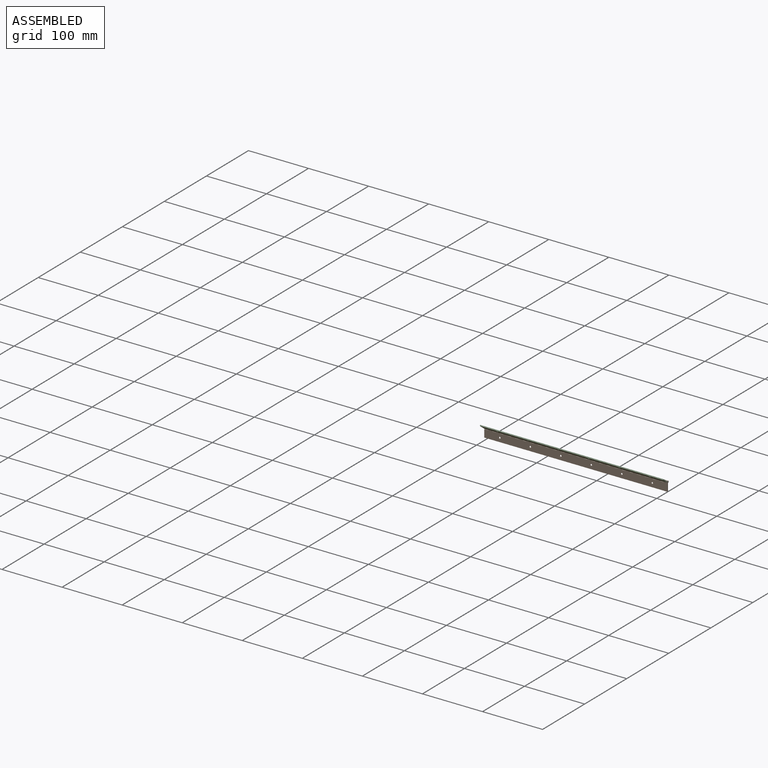
[diagram: assembled view]
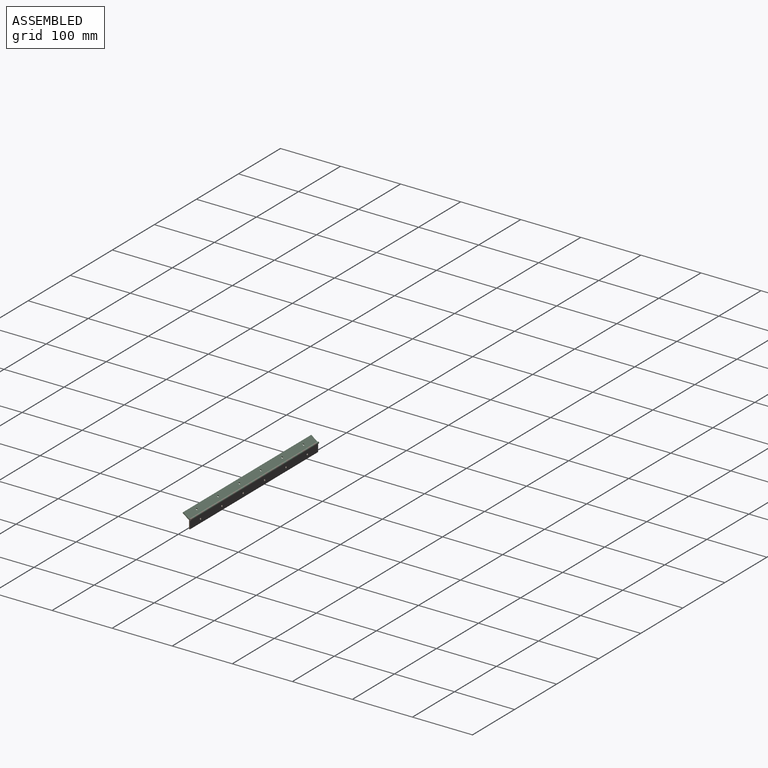
[diagram: assembled view, second angle]
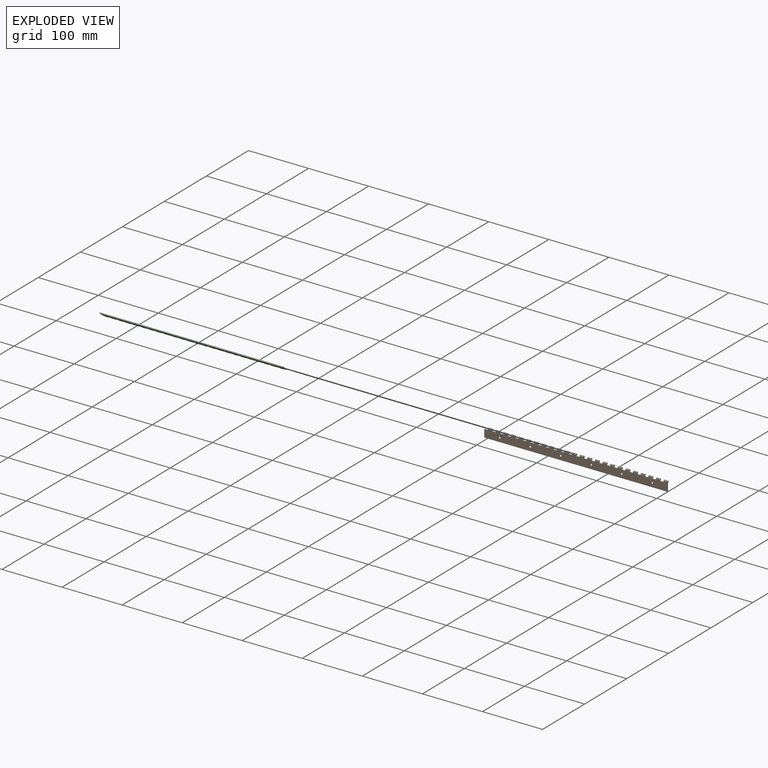
[diagram: exploded view]
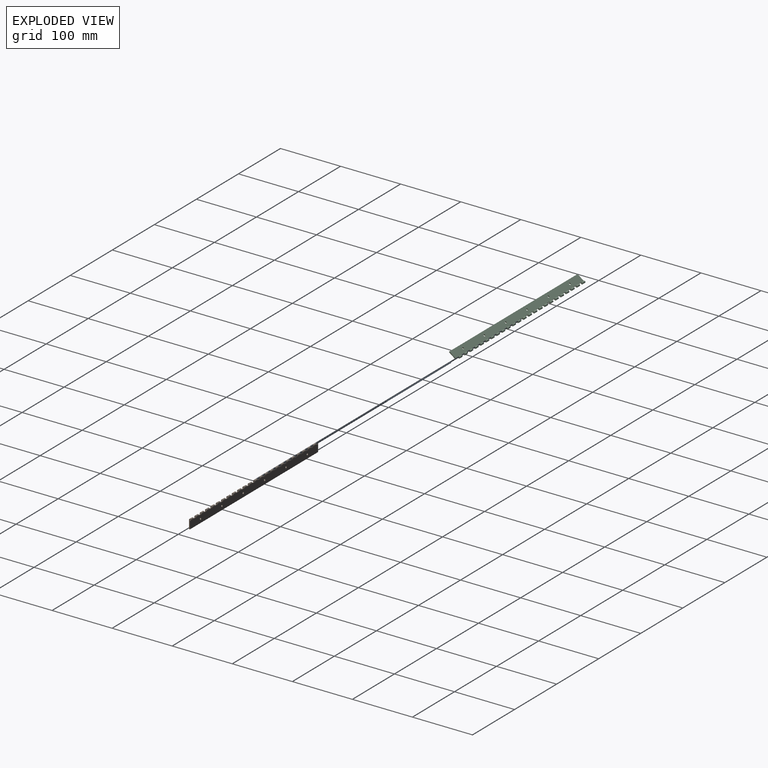
[diagram: exploded view, second angle]
ASSEMBLY  parts=3 mates=4
PART A: 3 faces, bbox 304.8x1.6x1.6 mm
  f0: cylinder r=0.79mm len=304.8mm, axis (-1,0,0), area 1520.1mm2, adj f1,f2
  f1: plane 1.59x1.59mm, normal (1,0,0), area 2mm2, adj f0
  f2: plane 1.59x1.59mm, normal (-1,0,0), area 2mm2, adj f0
PART B: 130 faces, bbox 304.8x3.2x15.9 mm
  f0: cylinder r=1.59mm len=6.35mm, axis (-1,0,0), area 47.5mm2, adj f23,f25,f118,f122
  f1: cylinder r=1.59mm len=6.35mm, axis (-1,0,0), area 47.5mm2, adj f23,f25,f114,f119
  f2: cylinder r=1.59mm len=6.35mm, axis (-1,0,0), area 47.5mm2, adj f23,f25,f110,f115
  f3: cylinder r=1.59mm len=6.35mm, axis (-1,0,0), area 47.5mm2, adj f23,f25,f106,f111
  f4: cylinder r=1.59mm len=6.35mm, axis (-1,0,0), area 47.5mm2, adj f23,f25,f102,f107
  f5: cylinder r=1.59mm len=6.35mm, axis (-1,0,0), area 47.5mm2, adj f23,f25,f98,f103
  f6: cylinder r=1.59mm len=6.35mm, axis (-1,0,0), area 47.5mm2, adj f23,f25,f94,f99
  f7: cylinder r=1.59mm len=6.35mm, axis (-1,0,0), area 47.5mm2, adj f23,f25,f90,f95
  f8: cylinder r=1.59mm len=6.35mm, axis (-1,0,0), area 47.5mm2, adj f23,f25,f86,f91
  f9: cylinder r=1.59mm len=6.35mm, axis (-1,0,0), area 47.5mm2, adj f23,f25,f82,f87
  f10: cylinder r=1.59mm len=6.35mm, axis (-1,0,0), area 47.5mm2, adj f23,f25,f78,f83
  f11: cylinder r=1.59mm len=6.35mm, axis (-1,0,0), area 47.5mm2, adj f23,f25,f74,f79
  f12: cylinder r=1.59mm len=6.35mm, axis (-1,0,0), area 47.5mm2, adj f23,f25,f70,f75
  f13: cylinder r=1.59mm len=6.35mm, axis (-1,0,0), area 47.5mm2, adj f23,f25,f66,f71
  f14: cylinder r=1.59mm len=6.35mm, axis (-1,0,0), area 47.5mm2, adj f23,f25,f62,f67
  f15: cylinder r=1.59mm len=6.35mm, axis (-1,0,0), area 47.5mm2, adj f23,f25,f58,f63
  f16: cylinder r=1.59mm len=6.35mm, axis (-1,0,0), area 47.5mm2, adj f23,f25,f54,f59
  f17: cylinder r=1.59mm len=6.35mm, axis (-1,0,0), area 47.5mm2, adj f23,f25,f50,f55
  f18: cylinder r=1.59mm len=6.35mm, axis (-1,0,0), area 47.5mm2, adj f23,f25,f46,f51
  f19: cylinder r=1.59mm len=6.35mm, axis (-1,0,0), area 47.5mm2, adj f23,f25,f42,f47
  f20: cylinder r=1.59mm len=6.35mm, axis (-1,0,0), area 47.5mm2, adj f23,f25,f38,f43
  f21: cylinder r=1.59mm len=6.35mm, axis (-1,0,0), area 47.5mm2, adj f23,f25,f34,f39
  f22: cylinder r=1.59mm len=6.35mm, axis (-1,0,0), area 47.5mm2, adj f23,f25,f30,f35
  f23: plane 304.8x14.29mm, normal (0,-1,0), area 4065.4mm2, adj f0,f1,f2,f3,f4,f5,f6,f7
  f24: plane 12.7x1.59mm, normal (-1,0,0), area 20.2mm2, adj f23,f25,f28,f123
  f25: plane 304.8x12.7mm, normal (0,1,0), area 3823.5mm2, adj f0,f1,f2,f3,f4,f5,f6,f7
  f26: cylinder r=1.59mm len=6.35mm, axis (-1,0,0), area 47.5mm2, adj f23,f25,f29,f31
  f27: cylinder r=0.79mm len=6.35mm, axis (-1,0,0), area 31.7mm2, adj f29,f31
  f28: plane 304.8x1.59mm, normal (0,0,-1), area 483.9mm2, adj f23,f24,f25,f29
  f29: plane 15.88x3.18mm, normal (1,0,0), area 26.6mm2, adj f23,f25,f26,f27,f28
  f30: plane 3.18x3.18mm, normal (1,0,0), area 6.5mm2, adj f22,f23,f32,f33
  f31: plane 3.18x3.18mm, normal (-1,0,0), area 6.5mm2, adj f23,f26,f27,f32
  f32: plane 6.35x1.59mm, normal (0,0,1), area 10.1mm2, adj f23,f25,f30,f31
  f33: cylinder r=0.79mm len=6.35mm, axis (-1,0,0), area 31.7mm2, adj f30,f35
  f34: plane 3.18x3.18mm, normal (1,0,0), area 6.5mm2, adj f21,f23,f36,f37
  f35: plane 3.18x3.18mm, normal (-1,0,0), area 6.5mm2, adj f22,f23,f33,f36
  f36: plane 6.35x1.59mm, normal (0,0,1), area 10.1mm2, adj f23,f25,f34,f35
  f37: cylinder r=0.79mm len=6.35mm, axis (-1,0,0), area 31.7mm2, adj f34,f39
  f38: plane 3.18x3.18mm, normal (1,0,0), area 6.5mm2, adj f20,f23,f40,f41
  f39: plane 3.18x3.18mm, normal (-1,0,0), area 6.5mm2, adj f21,f23,f37,f40
  f40: plane 6.35x1.59mm, normal (0,0,1), area 10.1mm2, adj f23,f25,f38,f39
  f41: cylinder r=0.79mm len=6.35mm, axis (-1,0,0), area 31.7mm2, adj f38,f43
  f42: plane 3.18x3.18mm, normal (1,0,0), area 6.5mm2, adj f19,f23,f44,f45
  f43: plane 3.18x3.18mm, normal (-1,0,0), area 6.5mm2, adj f20,f23,f41,f44
  f44: plane 6.35x1.59mm, normal (0,0,1), area 10.1mm2, adj f23,f25,f42,f43
  f45: cylinder r=0.79mm len=6.35mm, axis (-1,0,0), area 31.7mm2, adj f42,f47
  f46: plane 3.18x3.18mm, normal (1,0,0), area 6.5mm2, adj f18,f23,f48,f49
  f47: plane 3.18x3.18mm, normal (-1,0,0), area 6.5mm2, adj f19,f23,f45,f48
  f48: plane 6.35x1.59mm, normal (0,0,1), area 10.1mm2, adj f23,f25,f46,f47
  f49: cylinder r=0.79mm len=6.35mm, axis (-1,0,0), area 31.7mm2, adj f46,f51
  f50: plane 3.18x3.18mm, normal (1,0,0), area 6.5mm2, adj f17,f23,f52,f53
  f51: plane 3.18x3.18mm, normal (-1,0,0), area 6.5mm2, adj f18,f23,f49,f52
  f52: plane 6.35x1.59mm, normal (0,0,1), area 10.1mm2, adj f23,f25,f50,f51
  f53: cylinder r=0.79mm len=6.35mm, axis (-1,0,0), area 31.7mm2, adj f50,f55
  f54: plane 3.18x3.18mm, normal (1,0,0), area 6.5mm2, adj f16,f23,f56,f57
  f55: plane 3.18x3.18mm, normal (-1,0,0), area 6.5mm2, adj f17,f23,f53,f56
  f56: plane 6.35x1.59mm, normal (0,0,1), area 10.1mm2, adj f23,f25,f54,f55
  f57: cylinder r=0.79mm len=6.35mm, axis (-1,0,0), area 31.7mm2, adj f54,f59
  f58: plane 3.18x3.18mm, normal (1,0,0), area 6.5mm2, adj f15,f23,f60,f61
  f59: plane 3.18x3.18mm, normal (-1,0,0), area 6.5mm2, adj f16,f23,f57,f60
  f60: plane 6.35x1.59mm, normal (0,0,1), area 10.1mm2, adj f23,f25,f58,f59
  f61: cylinder r=0.79mm len=6.35mm, axis (-1,0,0), area 31.7mm2, adj f58,f63
  f62: plane 3.18x3.18mm, normal (1,0,0), area 6.5mm2, adj f14,f23,f64,f65
  f63: plane 3.18x3.18mm, normal (-1,0,0), area 6.5mm2, adj f15,f23,f61,f64
  f64: plane 6.35x1.59mm, normal (0,0,1), area 10.1mm2, adj f23,f25,f62,f63
  f65: cylinder r=0.79mm len=6.35mm, axis (-1,0,0), area 31.7mm2, adj f62,f67
  f66: plane 3.18x3.18mm, normal (1,0,0), area 6.5mm2, adj f13,f23,f68,f69
  f67: plane 3.18x3.18mm, normal (-1,0,0), area 6.5mm2, adj f14,f23,f65,f68
  f68: plane 6.35x1.59mm, normal (0,0,1), area 10.1mm2, adj f23,f25,f66,f67
  f69: cylinder r=0.79mm len=6.35mm, axis (-1,0,0), area 31.7mm2, adj f66,f71
  f70: plane 3.18x3.18mm, normal (1,0,0), area 6.5mm2, adj f12,f23,f72,f73
  f71: plane 3.18x3.18mm, normal (-1,0,0), area 6.5mm2, adj f13,f23,f69,f72
  f72: plane 6.35x1.59mm, normal (0,0,1), area 10.1mm2, adj f23,f25,f70,f71
  f73: cylinder r=0.79mm len=6.35mm, axis (-1,0,0), area 31.7mm2, adj f70,f75
  f74: plane 3.18x3.18mm, normal (1,0,0), area 6.5mm2, adj f11,f23,f76,f77
  f75: plane 3.18x3.18mm, normal (-1,0,0), area 6.5mm2, adj f12,f23,f73,f76
  f76: plane 6.35x1.59mm, normal (0,0,1), area 10.1mm2, adj f23,f25,f74,f75
  f77: cylinder r=0.79mm len=6.35mm, axis (-1,0,0), area 31.7mm2, adj f74,f79
  f78: plane 3.18x3.18mm, normal (1,0,0), area 6.5mm2, adj f10,f23,f80,f81
  f79: plane 3.18x3.18mm, normal (-1,0,0), area 6.5mm2, adj f11,f23,f77,f80
  f80: plane 6.35x1.59mm, normal (0,0,1), area 10.1mm2, adj f23,f25,f78,f79
  f81: cylinder r=0.79mm len=6.35mm, axis (-1,0,0), area 31.7mm2, adj f78,f83
  f82: plane 3.18x3.18mm, normal (1,0,0), area 6.5mm2, adj f9,f23,f84,f85
  f83: plane 3.18x3.18mm, normal (-1,0,0), area 6.5mm2, adj f10,f23,f81,f84
  f84: plane 6.35x1.59mm, normal (0,0,1), area 10.1mm2, adj f23,f25,f82,f83
  f85: cylinder r=0.79mm len=6.35mm, axis (-1,0,0), area 31.7mm2, adj f82,f87
  f86: plane 3.18x3.18mm, normal (1,0,0), area 6.5mm2, adj f8,f23,f88,f89
  f87: plane 3.18x3.18mm, normal (-1,0,0), area 6.5mm2, adj f9,f23,f85,f88
  f88: plane 6.35x1.59mm, normal (0,0,1), area 10.1mm2, adj f23,f25,f86,f87
  f89: cylinder r=0.79mm len=6.35mm, axis (-1,0,0), area 31.7mm2, adj f86,f91
  f90: plane 3.18x3.18mm, normal (1,0,0), area 6.5mm2, adj f7,f23,f92,f93
  f91: plane 3.18x3.18mm, normal (-1,0,0), area 6.5mm2, adj f8,f23,f89,f92
  f92: plane 6.35x1.59mm, normal (0,0,1), area 10.1mm2, adj f23,f25,f90,f91
  f93: cylinder r=0.79mm len=6.35mm, axis (-1,0,0), area 31.7mm2, adj f90,f95
  f94: plane 3.18x3.18mm, normal (1,0,0), area 6.5mm2, adj f6,f23,f96,f97
  f95: plane 3.18x3.18mm, normal (-1,0,0), area 6.5mm2, adj f7,f23,f93,f96
  f96: plane 6.35x1.59mm, normal (0,0,1), area 10.1mm2, adj f23,f25,f94,f95
  f97: cylinder r=0.79mm len=6.35mm, axis (-1,0,0), area 31.7mm2, adj f94,f99
  f98: plane 3.18x3.18mm, normal (1,0,0), area 6.5mm2, adj f5,f23,f100,f101
  f99: plane 3.18x3.18mm, normal (-1,0,0), area 6.5mm2, adj f6,f23,f97,f100
  f100: plane 6.35x1.59mm, normal (0,0,1), area 10.1mm2, adj f23,f25,f98,f99
  f101: cylinder r=0.79mm len=6.35mm, axis (-1,0,0), area 31.7mm2, adj f98,f103
  f102: plane 3.18x3.18mm, normal (1,0,0), area 6.5mm2, adj f4,f23,f104,f105
  f103: plane 3.18x3.18mm, normal (-1,0,0), area 6.5mm2, adj f5,f23,f101,f104
  f104: plane 6.35x1.59mm, normal (0,0,1), area 10.1mm2, adj f23,f25,f102,f103
  f105: cylinder r=0.79mm len=6.35mm, axis (-1,0,0), area 31.7mm2, adj f102,f107
  f106: plane 3.18x3.18mm, normal (1,0,0), area 6.5mm2, adj f3,f23,f108,f109
  f107: plane 3.18x3.18mm, normal (-1,0,0), area 6.5mm2, adj f4,f23,f105,f108
  f108: plane 6.35x1.59mm, normal (0,0,1), area 10.1mm2, adj f23,f25,f106,f107
  f109: cylinder r=0.79mm len=6.35mm, axis (-1,0,0), area 31.7mm2, adj f106,f111
  f110: plane 3.18x3.18mm, normal (1,0,0), area 6.5mm2, adj f2,f23,f112,f113
  f111: plane 3.18x3.18mm, normal (-1,0,0), area 6.5mm2, adj f3,f23,f109,f112
  f112: plane 6.35x1.59mm, normal (0,0,1), area 10.1mm2, adj f23,f25,f110,f111
  f113: cylinder r=0.79mm len=6.35mm, axis (-1,0,0), area 31.7mm2, adj f110,f115
  f114: plane 3.18x3.18mm, normal (1,0,0), area 6.5mm2, adj f1,f23,f116,f117
  f115: plane 3.18x3.18mm, normal (-1,0,0), area 6.5mm2, adj f2,f23,f113,f116
  f116: plane 6.35x1.59mm, normal (0,0,1), area 10.1mm2, adj f23,f25,f114,f115
  f117: cylinder r=0.79mm len=6.35mm, axis (-1,0,0), area 31.7mm2, adj f114,f119
  f118: plane 3.18x3.18mm, normal (1,0,0), area 6.5mm2, adj f0,f23,f120,f121
  f119: plane 3.18x3.18mm, normal (-1,0,0), area 6.5mm2, adj f1,f23,f117,f120
  f120: plane 6.35x1.59mm, normal (0,0,1), area 10.1mm2, adj f23,f25,f118,f119
  f121: cylinder r=0.79mm len=6.35mm, axis (-1,0,0), area 31.7mm2, adj f118,f122
  f122: plane 3.18x3.18mm, normal (-1,0,0), area 6.5mm2, adj f0,f23,f121,f123
  f123: plane 6.35x1.59mm, normal (0,0,1), area 10.1mm2, adj f23,f24,f25,f122
  f124: cylinder r=1.59mm len=3.18mm, axis (0,-1,0), area 15.8mm2, adj f23,f25
  f125: cylinder r=1.59mm len=3.18mm, axis (0,-1,0), area 15.8mm2, adj f23,f25
  f126: cylinder r=1.59mm len=3.18mm, axis (0,-1,0), area 15.8mm2, adj f23,f25
  f127: cylinder r=1.59mm len=3.18mm, axis (0,-1,0), area 15.8mm2, adj f23,f25
  f128: cylinder r=1.59mm len=3.18mm, axis (0,-1,0), area 15.8mm2, adj f23,f25
  f129: cylinder r=1.59mm len=3.18mm, axis (0,-1,0), area 15.8mm2, adj f23,f25
PART C: same geometry as B
PLACE A t=(-54.45,54.83,-112.74)mm
PLACE B t=(-54.45,53.24,-56.94)mm
PLACE C rot(axis=(0,0.89,0.45),180deg) t=(250.35,42.47,-35.32)mm
MATE cylindrical A.f0 <-> B.f0  axis (1,0,0) through (250.35,54.83,-42.65)mm
MATE cylindrical C.f0 <-> B.f0  axis (-1,0,0) through (-54.45,54.83,-42.65)mm
MATE planar C.f31 <-> B.f122  axis (1,0,0) through (-48.1,53.09,-42.33)mm
MATE planar A.f0 <-> C.f29  axis (-1,0,0) through (-54.45,54.83,-42.65)mm
